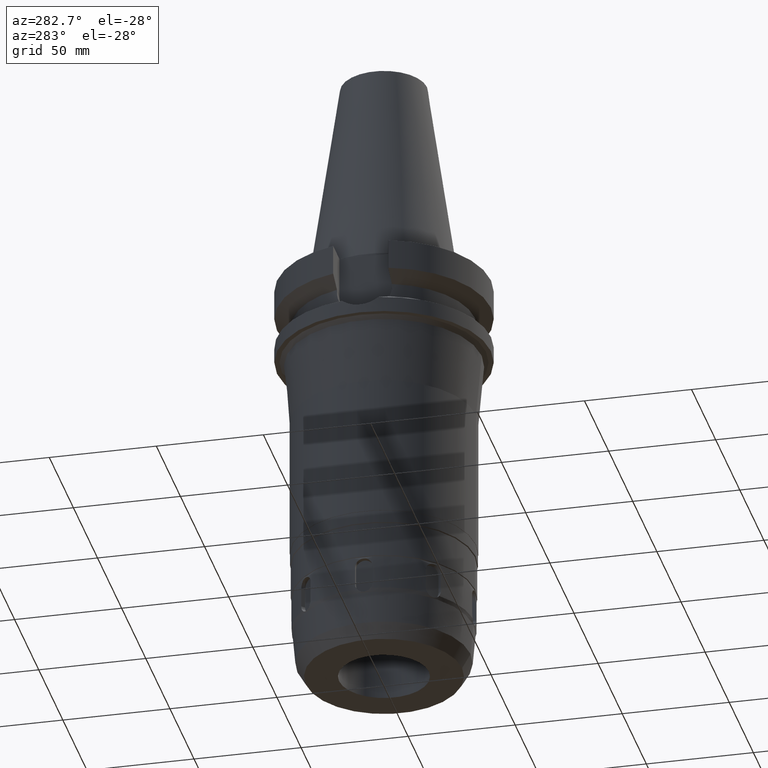
[diagram: clean part render]
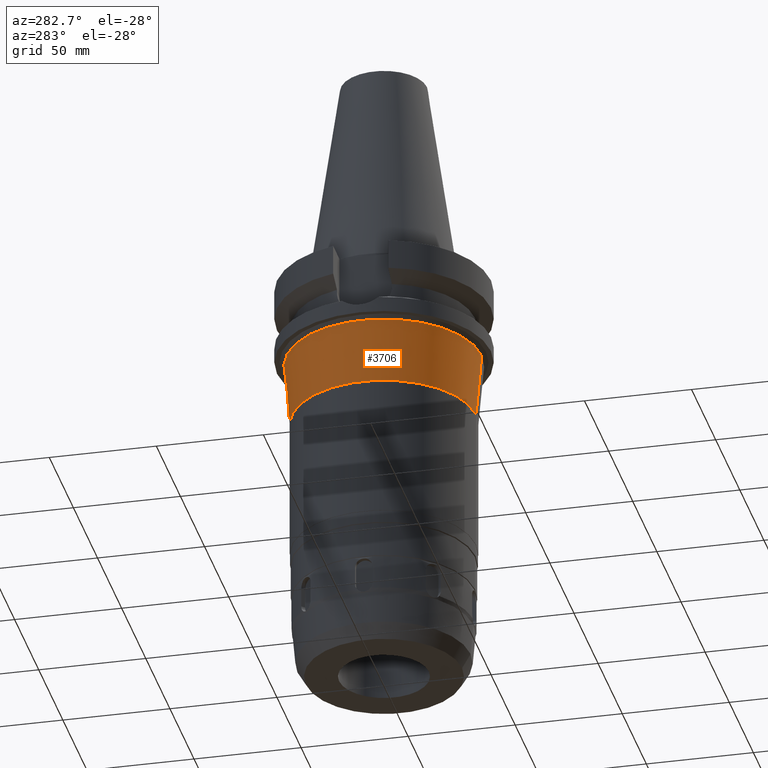
[diagram: same view with one face highlighted and labeled with its STEP entity id]
A machine part, auxiliary view. The second image highlights one B-rep face of the part: STEP entity #3706.
In plain terms, the highlighted conical surface has half-angle 5 deg.
Its self-contained STEP definition (entity closure, byte-faithful):
#1356=DIRECTION('',(0.E0,8.715574274767E-2,-9.961946980917E-1));
#1357=VECTOR('',#1356,3.028925977803E1);
#1358=CARTESIAN_POINT('',(0.E0,-4.563988293323E1,-3.9826E1));
#1359=LINE('',#1358,#1357);
#1363=CARTESIAN_POINT('',(0.E0,0.E0,-7.E1));
#1364=DIRECTION('',(0.E0,0.E0,-1.E0));
#1365=DIRECTION('',(0.E0,-1.E0,0.E0));
#1366=AXIS2_PLACEMENT_3D('',#1363,#1364,#1365);
#1371=DIRECTION('',(0.E0,-8.715574274767E-2,-9.961946980917E-1));
#1372=VECTOR('',#1371,3.028925977803E1);
#1373=CARTESIAN_POINT('',(0.E0,4.563988293323E1,-3.9826E1));
#1374=LINE('',#1373,#1372);
#1408=CARTESIAN_POINT('',(0.E0,0.E0,-3.9826E1));
#1409=DIRECTION('',(0.E0,0.E0,-1.E0));
#1410=DIRECTION('',(0.E0,-1.E0,0.E0));
#1411=AXIS2_PLACEMENT_3D('',#1408,#1409,#1410);
#2678=CARTESIAN_POINT('',(0.E0,4.3E1,-7.E1));
#2679=VERTEX_POINT('',#2678);
#2680=CARTESIAN_POINT('',(0.E0,-4.3E1,-7.E1));
#2681=VERTEX_POINT('',#2680);
#2682=CARTESIAN_POINT('',(0.E0,4.563988293323E1,-3.9826E1));
#2683=VERTEX_POINT('',#2682);
#2684=CARTESIAN_POINT('',(0.E0,-4.563988293323E1,-3.9826E1));
#2685=VERTEX_POINT('',#2684);
#3692=CARTESIAN_POINT('',(0.E0,0.E0,-5.4913E1));
#3693=DIRECTION('',(0.E0,0.E0,1.E0));
#3694=DIRECTION('',(0.E0,1.E0,0.E0));
#3695=AXIS2_PLACEMENT_3D('',#3692,#3693,#3694);
#3696=CONICAL_SURFACE('',#3695,4.431994146662E1,5.E0);
#3698=ORIENTED_EDGE('',*,*,#3697,.F.);
#3700=ORIENTED_EDGE('',*,*,#3699,.F.);
#3702=ORIENTED_EDGE('',*,*,#3701,.T.);
#3703=ORIENTED_EDGE('',*,*,#3685,.T.);
#3704=EDGE_LOOP('',(#3698,#3700,#3702,#3703));
#3705=FACE_OUTER_BOUND('',#3704,.F.);
#1367=CIRCLE('',#1366,4.3E1);
#1412=CIRCLE('',#1411,4.563988293323E1);
#3685=EDGE_CURVE('',#2681,#2679,#1367,.T.);
#3697=EDGE_CURVE('',#2683,#2679,#1374,.T.);
#3699=EDGE_CURVE('',#2685,#2683,#1412,.T.);
#3701=EDGE_CURVE('',#2685,#2681,#1359,.T.);
#3706=ADVANCED_FACE('',(#3705),#3696,.T.);